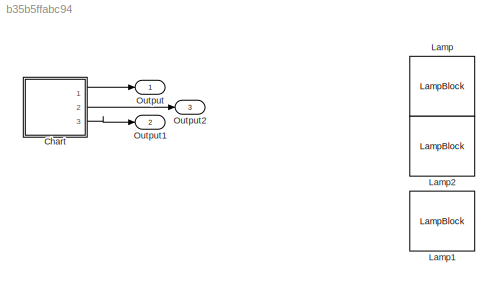
MODEL slx_b35b5ffabc94
KIND model
CONFIG AbsTol = auto
CONFIG EnableMultiTasking = off
CONFIG FixedStep = auto
CONFIG MaxStep = auto
CONFIG MinStep = auto
CONFIG RelTol = 1e-3
CONFIG SampleTimeConstraint = Unconstrained
CONFIG Solver = FixedStepDiscrete
CONFIG SolverName = FixedStepDiscrete
CONFIG StartTime = 0.0
CONFIG StopTime = 10.0
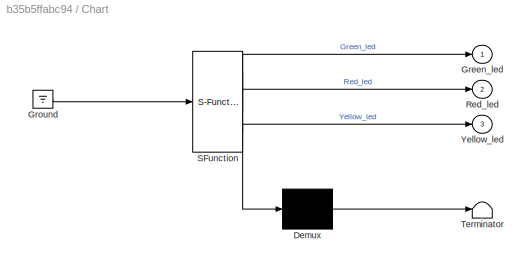
BLOCK [SubSystem] Chart
  ErrorFcn = Stateflow.Translate.translate
  PermitHierarchicalResolution = ExplicitOnly
  Ports = [0, 3]
  RequestExecContextInheritance = off
  SFBlockType = Chart
  TreatAsAtomicUnit = on
BLOCK [Demux] Chart/ Demux 
  Outputs = 1
  Ports = [1, 1]
BLOCK [Ground] Chart/ Ground 
BLOCK [S-Function] Chart/ SFunction 
  EnableBusSupport = on
  FunctionName = sf_sfun
  PortCounts = [1 4]
  Ports = [1, 4]
  SFcnIsStateOwnerBlock = off
  SFunctionDeploymentMode = off
  Tag = Stateflow S-Function untitled 3
BLOCK [Terminator] Chart/ Terminator 
BLOCK [Outport] Chart/Green_led
  IconDisplay = Port number
BLOCK [Outport] Chart/Red_led
  IconDisplay = Port number
  Port = 2
BLOCK [Outport] Chart/Yellow_led
  IconDisplay = Port number
  Port = 3
BLOCK [LampBlock] Lamp
  WebBlockId = 11
BLOCK [LampBlock] Lamp1
  WebBlockId = 12
BLOCK [LampBlock] Lamp2
  WebBlockId = 13
BLOCK [Outport] Output
  IconDisplay = Port number
BLOCK [Outport] Output1
  IconDisplay = Port number
  Port = 2
BLOCK [Outport] Output2
  IconDisplay = Port number
  Port = 3
LINE Chart:1 -> Output:1
LINE Chart:2 -> Output2:1
LINE Chart:3 -> Output1:1
CHART Chart states=3 transitions=4
  STATE_LABEL 'Yellow\nen:\nYellow_led=1;\nRed_led=0;\nGreen_led=0;\ndu:\nYellow_led=1;\nex:\nYellow_led=0;'
  STATE_LABEL 'Red\nen:\nRed_led=1;\nYellow_led=0;\nGreen_led=0;\ndu:\nRed_led=1;\nex:\nRed_led=0;\n'
  STATE_LABEL 'Green\nen:\nGreen_led=1;\nRed_led=0;\nYellow_led=0;\ndu:\nGreen_led=1;\nex:\nGreen_led=0;\n'
